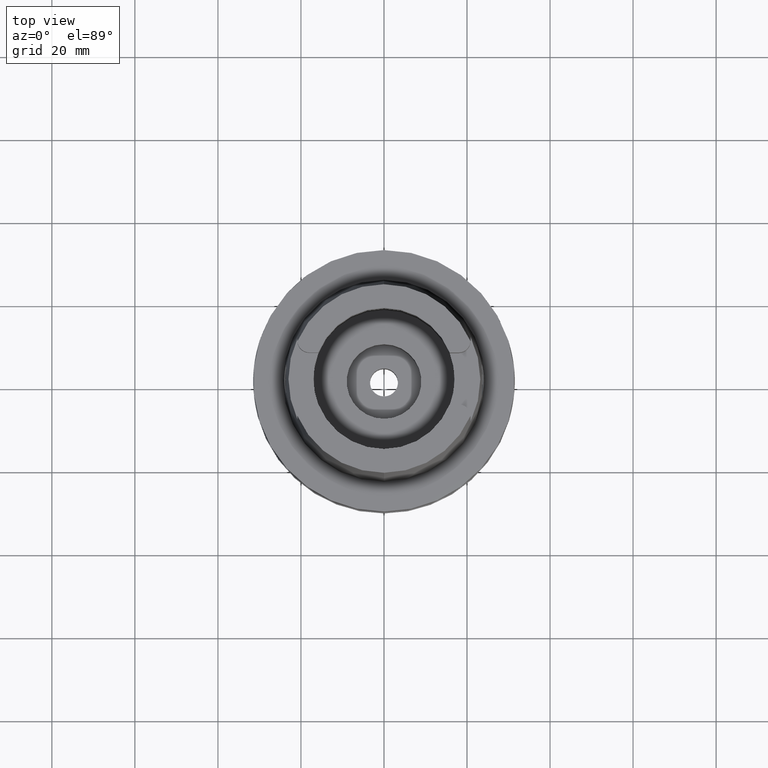
[diagram: clean part render]
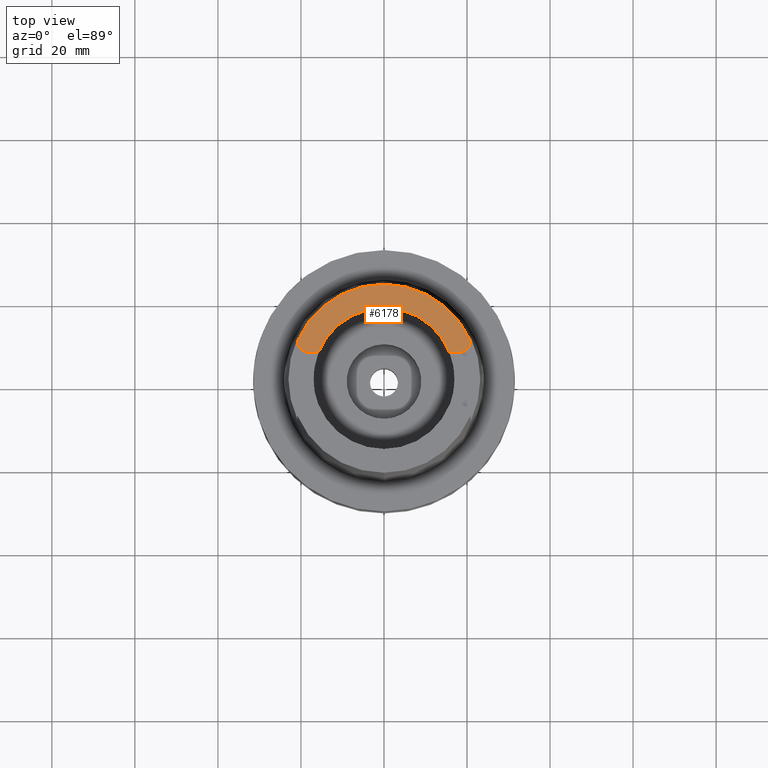
[diagram: same view with one face highlighted and labeled with its STEP entity id]
A machine part, top view. The second image highlights one B-rep face of the part: STEP entity #6178.
In plain terms, the highlighted planar face has unit normal (0, 0, 1).
Its self-contained STEP definition (entity closure, byte-faithful):
#3327=CARTESIAN_POINT('',(-1.799E1,9.15E0,3.2E1));
#3328=DIRECTION('',(0.E0,0.E0,-1.E0));
#3329=DIRECTION('',(0.E0,-1.E0,0.E0));
#3330=AXIS2_PLACEMENT_3D('',#3327,#3328,#3329);
#3335=CARTESIAN_POINT('',(0.E0,0.E0,3.2E1));
#3336=DIRECTION('',(0.E0,0.E0,-1.E0));
#3337=DIRECTION('',(-9.185535885356E-1,3.952964773285E-1,0.E0));
#3338=AXIS2_PLACEMENT_3D('',#3335,#3336,#3337);
#3343=CARTESIAN_POINT('',(0.E0,0.E0,3.2E1));
#3344=DIRECTION('',(0.E0,0.E0,-1.E0));
#3345=DIRECTION('',(0.E0,1.E0,0.E0));
#3346=AXIS2_PLACEMENT_3D('',#3343,#3344,#3345);
#3351=CARTESIAN_POINT('',(1.799E1,9.15E0,3.2E1));
#3352=DIRECTION('',(0.E0,0.E0,-1.E0));
#3353=DIRECTION('',(9.982388918271E-1,-5.932212777602E-2,0.E0));
#3354=AXIS2_PLACEMENT_3D('',#3351,#3352,#3353);
#3359=CARTESIAN_POINT('',(0.E0,0.E0,3.2E1));
#3360=DIRECTION('',(0.E0,0.E0,1.E0));
#3361=DIRECTION('',(9.294994374136E-1,3.688235294118E-1,0.E0));
#3362=AXIS2_PLACEMENT_3D('',#3359,#3360,#3361);
#3367=CARTESIAN_POINT('',(0.E0,0.E0,3.2E1));
#3368=DIRECTION('',(0.E0,0.E0,1.E0));
#3369=DIRECTION('',(0.E0,1.E0,0.E0));
#3370=AXIS2_PLACEMENT_3D('',#3367,#3368,#3369);
#3375=DIRECTION('',(1.E0,8.644330667353E-14,0.E0));
#3376=VECTOR('',#3375,2.188509563969E0);
#3377=CARTESIAN_POINT('',(-1.799E1,6.27E0,3.2E1));
#3378=LINE('',#3377,#3376);
#3410=DIRECTION('',(1.E0,-8.522579531193E-14,0.E0));
#3411=VECTOR('',#3410,2.188509563969E0);
#3412=CARTESIAN_POINT('',(1.580149043603E1,6.27E0,3.2E1));
#3413=LINE('',#3412,#3411);
#3421=CARTESIAN_POINT('',(-1.580149043603E1,6.27E0,3.2E1));
#3422=VERTEX_POINT('',#3421);
#3423=CARTESIAN_POINT('',(0.E0,1.7E1,3.2E1));
#3424=VERTEX_POINT('',#3423);
#3447=CARTESIAN_POINT('',(-1.799E1,6.27E0,3.2E1));
#3448=VERTEX_POINT('',#3447);
#3449=CARTESIAN_POINT('',(-2.086492800846E1,8.979152272005E0,3.2E1));
#3450=VERTEX_POINT('',#3449);
#3451=CARTESIAN_POINT('',(0.E0,2.271498175923E1,3.2E1));
#3452=VERTEX_POINT('',#3451);
#3453=CARTESIAN_POINT('',(2.086492800846E1,8.979152272005E0,3.2E1));
#3454=VERTEX_POINT('',#3453);
#3455=CARTESIAN_POINT('',(1.799E1,6.27E0,3.2E1));
#3456=VERTEX_POINT('',#3455);
#3457=CARTESIAN_POINT('',(1.580149043603E1,6.27E0,3.2E1));
#3458=VERTEX_POINT('',#3457);
#6159=CARTESIAN_POINT('',(0.E0,0.E0,3.2E1));
#6160=DIRECTION('',(0.E0,0.E0,1.E0));
#6161=DIRECTION('',(0.E0,1.E0,0.E0));
#6162=AXIS2_PLACEMENT_3D('',#6159,#6160,#6161);
#6163=PLANE('',#6162);
#6165=ORIENTED_EDGE('',*,*,#6164,.F.);
#6167=ORIENTED_EDGE('',*,*,#6166,.T.);
#6168=ORIENTED_EDGE('',*,*,#4018,.T.);
#6169=ORIENTED_EDGE('',*,*,#4055,.T.);
#6171=ORIENTED_EDGE('',*,*,#6170,.T.);
#6173=ORIENTED_EDGE('',*,*,#6172,.F.);
#6174=ORIENTED_EDGE('',*,*,#4111,.T.);
#6175=ORIENTED_EDGE('',*,*,#3913,.T.);
#6176=EDGE_LOOP('',(#6165,#6167,#6168,#6169,#6171,#6173,#6174,#6175));
#6177=FACE_OUTER_BOUND('',#6176,.F.);
#3331=CIRCLE('',#3330,2.88E0);
#3339=CIRCLE('',#3338,2.271498175923E1);
#3347=CIRCLE('',#3346,2.271498175923E1);
#3355=CIRCLE('',#3354,2.88E0);
#3363=CIRCLE('',#3362,1.7E1);
#3371=CIRCLE('',#3370,1.7E1);
#3913=EDGE_CURVE('',#3424,#3422,#3371,.T.);
#4018=EDGE_CURVE('',#3450,#3452,#3339,.T.);
#4055=EDGE_CURVE('',#3452,#3454,#3347,.T.);
#4111=EDGE_CURVE('',#3458,#3424,#3363,.T.);
#6164=EDGE_CURVE('',#3448,#3422,#3378,.T.);
#6166=EDGE_CURVE('',#3448,#3450,#3331,.T.);
#6170=EDGE_CURVE('',#3454,#3456,#3355,.T.);
#6172=EDGE_CURVE('',#3458,#3456,#3413,.T.);
#6178=ADVANCED_FACE('',(#6177),#6163,.T.);